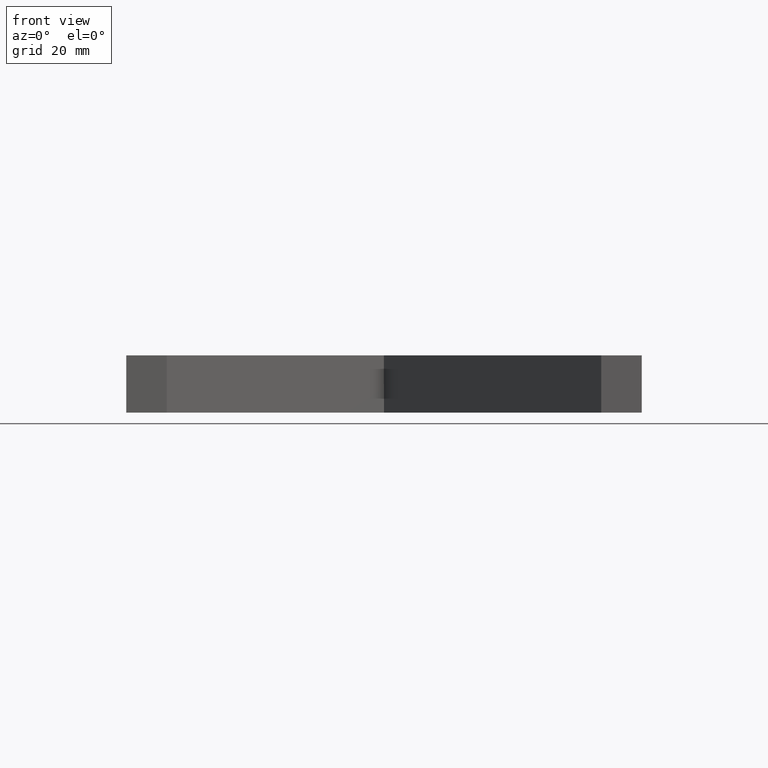
[diagram: clean part render]
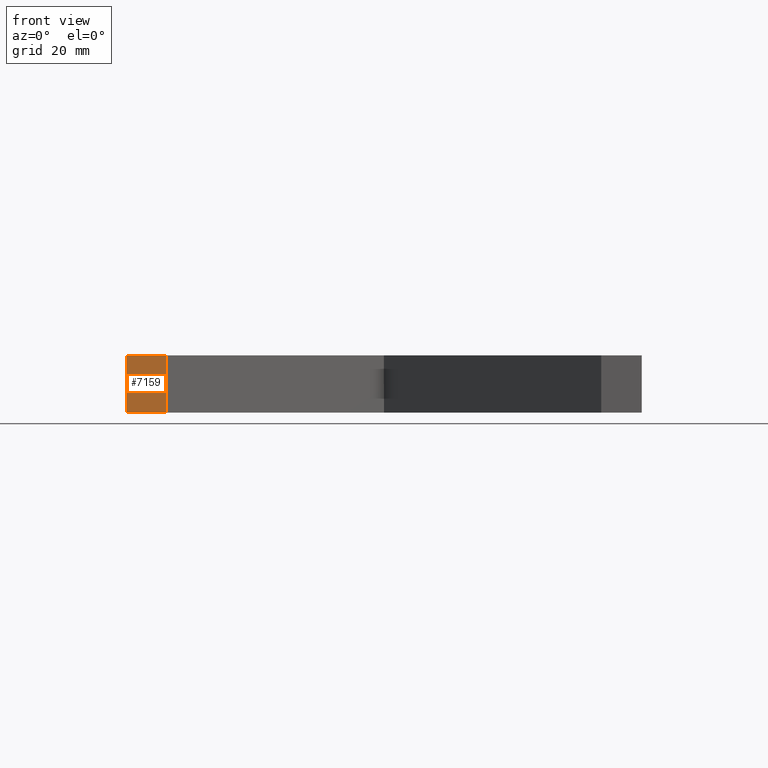
[diagram: same view with one face highlighted and labeled with its STEP entity id]
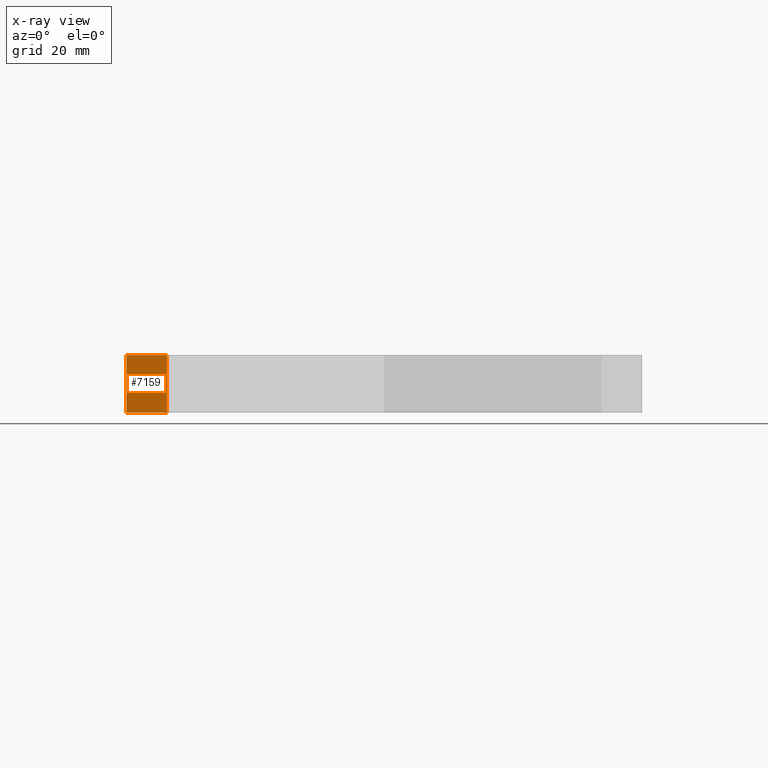
[diagram: x-ray of the same camera — body ghosted, the highlighted face saturated]
A machine part, front view. The second image highlights one B-rep face of the part: STEP entity #7159.
The next image is the same camera in x-ray: the body ghosted, the highlighted face saturated — about 0% of this face is hidden behind the body in this view.
In plain terms, the highlighted planar face has unit normal (0, 1, -0).
Its self-contained STEP definition (entity closure, byte-faithful):
#722 = ORIENTED_EDGE ( 'NONE', *, *, #11916, .F. ) ;
#818 = CARTESIAN_POINT ( 'NONE',  ( -53.99999999999997868, -54.00000000000000000, 12.00000000000000000 ) ) ;
#1242 = ORIENTED_EDGE ( 'NONE', *, *, #6998, .F. ) ;
#1555 = DIRECTION ( 'NONE',  ( -0.000000000000000000, -0.000000000000000000, -1.000000000000000000 ) ) ;
#1623 = CARTESIAN_POINT ( 'NONE',  ( -53.99999999999997868, -54.00000000000000000, 12.00000000000000000 ) ) ;
#2025 = DIRECTION ( 'NONE',  ( -1.000000000000000000, 8.177564888978004278E-16, 0.000000000000000000 ) ) ;
#2769 = DIRECTION ( 'NONE',  ( 1.000000000000000000, -8.177564888978004278E-16, 0.000000000000000000 ) ) ;
#3031 = DIRECTION ( 'NONE',  ( -0.000000000000000000, -0.000000000000000000, -1.000000000000000000 ) ) ;
#3833 = FACE_OUTER_BOUND ( 'NONE', #9991, .T. ) ;
#4263 = DIRECTION ( 'NONE',  ( 8.177564888978004278E-16, 1.000000000000000000, -0.000000000000000000 ) ) ;
#4833 = CARTESIAN_POINT ( 'NONE',  ( -45.51471862576141802, -54.00000000000000711, 0.000000000000000000 ) ) ;
#5381 = LINE ( 'NONE', #11875, #12993 ) ;
#5422 = CARTESIAN_POINT ( 'NONE',  ( -53.99999999999997868, -54.00000000000000000, 0.000000000000000000 ) ) ;
#6086 = LINE ( 'NONE', #9844, #7313 ) ;
#6501 = PLANE ( 'NONE',  #7332 ) ;
#6998 = EDGE_CURVE ( 'NONE', #11005, #11011, #10434, .T. ) ;
#7159 = ADVANCED_FACE ( 'NONE', ( #3833 ), #6501, .F. ) ;
#7313 = VECTOR ( 'NONE', #3031, 1000.000000000000000 ) ;
#7332 = AXIS2_PLACEMENT_3D ( 'NONE', #818, #4263, #2025 ) ;
#7619 = CARTESIAN_POINT ( 'NONE',  ( -53.99999999999997868, -54.00000000000000000, 12.00000000000000000 ) ) ;
#7711 = DIRECTION ( 'NONE',  ( 1.000000000000000000, -8.177564888978004278E-16, 0.000000000000000000 ) ) ;
#8498 = ORIENTED_EDGE ( 'NONE', *, *, #8780, .T. ) ;
#8780 = EDGE_CURVE ( 'NONE', #11336, #13712, #12351, .T. ) ;
#9844 = CARTESIAN_POINT ( 'NONE',  ( -53.99999999999997868, -54.00000000000000000, 12.00000000000000000 ) ) ;
#9991 = EDGE_LOOP ( 'NONE', ( #8498, #722, #1242, #12654 ) ) ;
#10406 = VECTOR ( 'NONE', #7711, 1000.000000000000000 ) ;
#10434 = LINE ( 'NONE', #1623, #14512 ) ;
#10769 = CARTESIAN_POINT ( 'NONE',  ( -53.99999999999997868, -54.00000000000000000, 0.000000000000000000 ) ) ;
#11005 = VERTEX_POINT ( 'NONE', #7619 ) ;
#11011 = VERTEX_POINT ( 'NONE', #12376 ) ;
#11336 = VERTEX_POINT ( 'NONE', #10769 ) ;
#11875 = CARTESIAN_POINT ( 'NONE',  ( -45.51471862576141802, -54.00000000000000711, 12.00000000000000000 ) ) ;
#11916 = EDGE_CURVE ( 'NONE', #11011, #13712, #5381, .T. ) ;
#12351 = LINE ( 'NONE', #5422, #10406 ) ;
#12376 = CARTESIAN_POINT ( 'NONE',  ( -45.51471862576141802, -54.00000000000000711, 12.00000000000000000 ) ) ;
#12497 = EDGE_CURVE ( 'NONE', #11005, #11336, #6086, .T. ) ;
#12654 = ORIENTED_EDGE ( 'NONE', *, *, #12497, .T. ) ;
#12993 = VECTOR ( 'NONE', #1555, 1000.000000000000000 ) ;
#13712 = VERTEX_POINT ( 'NONE', #4833 ) ;
#14512 = VECTOR ( 'NONE', #2769, 1000.000000000000000 ) ;